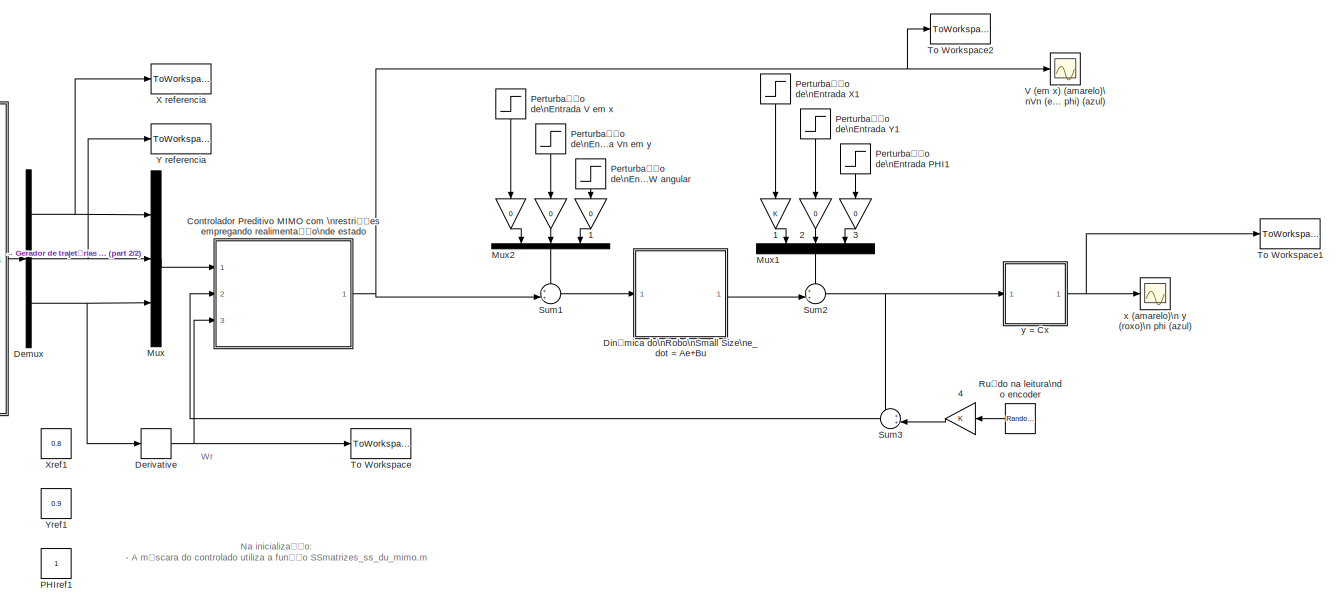
[diagram: root canvas - part 1/2, most of the canvas]
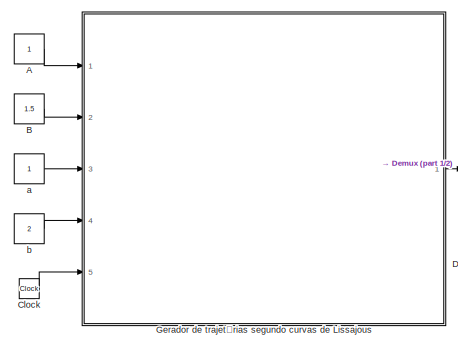
[diagram: root canvas - part 2/2, middle left region]
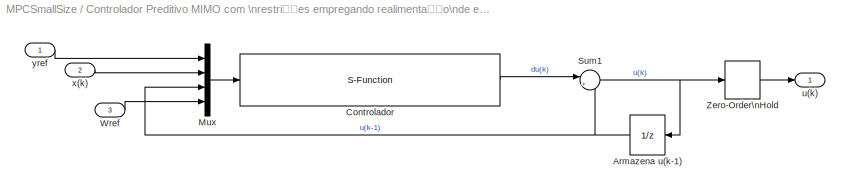
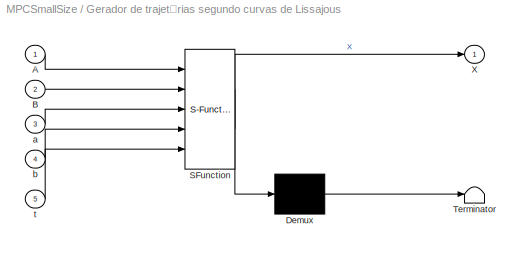
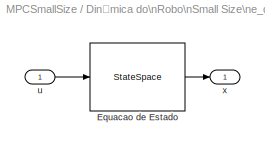
MODEL MPCSmallSize
KIND model
CONFIG InitFcn = parametrosSmallSize
CONFIG StopFcn = robotTrajectoryAnimation(xref,yref,X(:,1),X(:,2),X(:,3))
BLOCK [Gain]  
  Gain = 0
  OutDataTypeStr = Inherit: Inherit via internal rule
  ParamDataTypeStr = Inherit: Inherit via internal rule
  SID = 50
  SaturateOnIntegerOverflow = off
BLOCK [Gain]   
  Gain = 0
  OutDataTypeStr = Inherit: Inherit via internal rule
  ParamDataTypeStr = Inherit: Inherit via internal rule
  SID = 51
  SaturateOnIntegerOverflow = off
BLOCK [Gain]   1
  OutDataTypeStr = Inherit: Inherit via internal rule
  ParamDataTypeStr = Inherit: Inherit via internal rule
  SID = 88
  SaturateOnIntegerOverflow = off
BLOCK [Gain]  1
  Gain = 0
  OutDataTypeStr = Inherit: Inherit via internal rule
  ParamDataTypeStr = Inherit: Inherit via internal rule
  SID = 61
  SaturateOnIntegerOverflow = off
BLOCK [Gain]  2
  Gain = 0
  OutDataTypeStr = Inherit: Inherit via internal rule
  ParamDataTypeStr = Inherit: Inherit via internal rule
  SID = 87
  SaturateOnIntegerOverflow = off
BLOCK [Gain]  3
  Gain = 0
  OutDataTypeStr = Inherit: Inherit via internal rule
  ParamDataTypeStr = Inherit: Inherit via internal rule
  SID = 89
  SaturateOnIntegerOverflow = off
BLOCK [Gain]  4
  OutDataTypeStr = Inherit: Inherit via internal rule
  ParamDataTypeStr = Inherit: Inherit via internal rule
  SID = 97
  SaturateOnIntegerOverflow = off
BLOCK [Scope]  x (amarelo)\n y (roxo)\n phi (azul)
  NumInputPorts = 1
  Ports = [1]
  SID = 64
  ScopeSpecificationString = Simulink.scopes.TimeScopeBlockCfg('CurrentConfiguration', extmgr.ConfigurationSet(extmgr.Configuration('Core','General UI',true),extmgr.Configuration('Core','Source UI',true),extmgr.Configuration('Sources','WiredSimulink',true,'DataLoggingVariableName','ScopeData1','DataLoggingSaveFormat','Array','DataLoggingDecimation','1','DataLoggingDecimateData',true),extmgr.Configuration('Visuals','Time Domai...<+1827ch>
BLOCK [Constant] A
  SID = 105
BLOCK [Constant] B
  SID = 106
  Value = 1.5
BLOCK [Clock] Clock
  SID = 104
BLOCK [SubSystem] Controlador Preditivo MIMO com \nrestrições empregando realimentação\nde estado
  Ports = [3, 1]
  RequestExecContextInheritance = off
  SID = 1
  Variant = off
BLOCK [UnitDelay] Controlador Preditivo MIMO com \nrestrições empregando realimentação\nde estado/Armazena u(k-1)
  SID = 4
  SampleTime = T
BLOCK [S-Function] Controlador Preditivo MIMO com \nrestrições empregando realimentação\nde estado/Controlador
  EnableBusSupport = off
  FunctionName = SSmpc_ss_du_mimo
  Parameters = dumax,dumin,umax,umin,ymax,ymin,p,q,n,N,M,mu,rho,T
  Ports = [1, 1]
  SFcnIsStateOwnerBlock = off
  SFunctionDeploymentMode = off
  SID = 5
BLOCK [Mux] Controlador Preditivo MIMO com \nrestrições empregando realimentação\nde estado/Mux
  DisplayOption = bar
  Ports = [4, 1]
  SID = 6
BLOCK [Sum] Controlador Preditivo MIMO com \nrestrições empregando realimentação\nde estado/Sum1
  IconShape = round
  Inputs = |++
  Ports = [2, 1]
  SID = 7
BLOCK [Inport] Controlador Preditivo MIMO com \nrestrições empregando realimentação\nde estado/Wref
  IconDisplay = Port number
  Port = 3
  SID = 56
BLOCK [ZeroOrderHold] Controlador Preditivo MIMO com \nrestrições empregando realimentação\nde estado/Zero-Order\nHold
  SID = 8
  SampleTime = T
BLOCK [Outport] Controlador Preditivo MIMO com \nrestrições empregando realimentação\nde estado/u(k)
  IconDisplay = Port number
  SID = 9
BLOCK [Inport] Controlador Preditivo MIMO com \nrestrições empregando realimentação\nde estado/x(k)
  IconDisplay = Port number
  Port = 2
  SID = 3
BLOCK [Inport] Controlador Preditivo MIMO com \nrestrições empregando realimentação\nde estado/yref
  IconDisplay = Port number
  SID = 2
BLOCK [Demux] Demux
  DisplayOption = bar
  Outputs = 3
  Ports = [1, 3]
  SID = 103
BLOCK [Derivative] Derivative
  SID = 53
BLOCK [SubSystem] Dinâmica do\nRobo\nSmall Size\ne_dot = Ae+Bu
  Ports = [1, 1]
  RequestExecContextInheritance = off
  SID = 11
  Variant = off
BLOCK [StateSpace] Dinâmica do\nRobo\nSmall Size\ne_dot = Ae+Bu/Equacao de Estado
  A = Ac
  B = Bc
  C = eye(size(A,1),size(A,1))
  D = zeros(size(A,1),size(B,2))
  Ports = [1, 1]
  SID = 13
  X0 = zeros(size(A,1),1)
BLOCK [Inport] Dinâmica do\nRobo\nSmall Size\ne_dot = Ae+Bu/u
  IconDisplay = Port number
  SID = 12
BLOCK [Outport] Dinâmica do\nRobo\nSmall Size\ne_dot = Ae+Bu/x
  IconDisplay = Port number
  SID = 14
BLOCK [SubSystem] Gerador de trajetórias segundo curvas de Lissajous
  ErrorFcn = Stateflow.Translate.translate
  PermitHierarchicalResolution = ExplicitOnly
  Ports = [5, 1]
  RequestExecContextInheritance = off
  SFBlockType = MATLAB Function
  SID = 98
  TreatAsAtomicUnit = on
  Variant = off
BLOCK [Demux] Gerador de trajetórias segundo curvas de Lissajous/ Demux 
  Outputs = 1
  Ports = [1, 1]
  SID = 98::20
BLOCK [S-Function] Gerador de trajetórias segundo curvas de Lissajous/ SFunction 
  EnableBusSupport = on
  FunctionName = sf_sfun
  PortCounts = [5 2]
  Ports = [5, 2]
  SFcnIsStateOwnerBlock = off
  SFunctionDeploymentMode = off
  SID = 98::19
  Tag = Stateflow S-Function MPCSmallSize 2
BLOCK [Terminator] Gerador de trajetórias segundo curvas de Lissajous/ Terminator 
  SID = 98::21
BLOCK [Inport] Gerador de trajetórias segundo curvas de Lissajous/A
  IconDisplay = Port number
  SID = 98::1
BLOCK [Inport] Gerador de trajetórias segundo curvas de Lissajous/B
  IconDisplay = Port number
  Port = 2
  SID = 98::22
BLOCK [Outport] Gerador de trajetórias segundo curvas de Lissajous/X
  IconDisplay = Port number
  SID = 98::5
BLOCK [Inport] Gerador de trajetórias segundo curvas de Lissajous/a
  IconDisplay = Port number
  Port = 3
  SID = 98::23
BLOCK [Inport] Gerador de trajetórias segundo curvas de Lissajous/b
  IconDisplay = Port number
  Port = 4
  SID = 98::24
BLOCK [Inport] Gerador de trajetórias segundo curvas de Lissajous/t
  IconDisplay = Port number
  Port = 5
  SID = 98::25
BLOCK [Mux] Mux
  DisplayOption = bar
  Inputs = 3
  Ports = [3, 1]
  SID = 15
BLOCK [Mux] Mux1
  DisplayOption = bar
  Inputs = 3
  Ports = [3, 1]
  SID = 90
BLOCK [Mux] Mux2
  DisplayOption = bar
  Inputs = 3
  Ports = [3, 1]
  SID = 17
BLOCK [Constant] PHIref1
  Commented = on
  SID = 99
BLOCK [Step] Perturbação de\nEntrada PHI1
  After = 2
  SID = 91
  SampleTime = 0
  Time = 4
BLOCK [Step] Perturbação de\nEntrada V em x
  SID = 32
  SampleTime = 0
BLOCK [Step] Perturbação de\nEntrada Vn em y
  After = 2
  SID = 33
  SampleTime = 0
  Time = 4
BLOCK [Step] Perturbação de\nEntrada W angular
  After = 2
  SID = 62
  SampleTime = 0
  Time = 4
BLOCK [Step] Perturbação de\nEntrada X1
  SID = 92
  SampleTime = 0
  Time = 0.3
BLOCK [Step] Perturbação de\nEntrada Y1
  After = 1.5
  SID = 93
  SampleTime = 0
  Time = 0.6
BLOCK [RandomNumber] Ruído na leitura\ndo encoder
  SID = 95
  SampleTime = 0.1
  Variance = 0.001
BLOCK [Sum] Sum1
  IconShape = round
  InputSameDT = off
  Inputs = ++|
  OutDataTypeStr = Inherit: Inherit via internal rule
  Ports = [2, 1]
  SID = 38
BLOCK [Sum] Sum2
  IconShape = round
  InputSameDT = off
  Inputs = ++|
  OutDataTypeStr = Inherit: Inherit via internal rule
  Ports = [2, 1]
  SID = 94
BLOCK [Sum] Sum3
  IconShape = round
  InputSameDT = off
  Inputs = ++|
  OutDataTypeStr = Inherit: Inherit via internal rule
  Ports = [2, 1]
  SID = 96
BLOCK [ToWorkspace] To Workspace
  FixptAsFi = on
  MaxDataPoints = inf
  Ports = [1]
  SID = 59
  SampleTime = -1
  Save2DSignal = 3-D array (concatenate along third dimension)
  SaveFormat = Timeseries
  VariableName = wr
BLOCK [ToWorkspace] To Workspace1
  FixptAsFi = on
  MaxDataPoints = inf
  Ports = [1]
  SID = 65
  SampleTime = -1
  Save2DSignal = 2-D array (concatenate along first dimension)
  VariableName = X
BLOCK [ToWorkspace] To Workspace2
  FixptAsFi = on
  MaxDataPoints = inf
  Ports = [1]
  SID = 112
  SampleTime = -1
  Save2DSignal = 2-D array (concatenate along first dimension)
  SaveFormat = Structure With Time
  VariableName = u
BLOCK [Scope] V (em x) (amarelo)\nVn (em y) (roxo)\nW (em phi) (azul)
  NumInputPorts = 1
  Ports = [1]
  SID = 40
  ScopeSpecificationString = Simulink.scopes.TimeScopeBlockCfg('CurrentConfiguration', extmgr.ConfigurationSet(extmgr.Configuration('Core','General UI',true),extmgr.Configuration('Core','Source UI',true),extmgr.Configuration('Sources','WiredSimulink',true,'DataLoggingVariableName','y1','DataLoggingSaveFormat','Array','DataLoggingDecimation','1','DataLoggingDecimateData',true),extmgr.Configuration('Visuals','Time Domain',true,...<+2010ch>
BLOCK [ToWorkspace] X referencia
  FixptAsFi = on
  MaxDataPoints = inf
  Ports = [1]
  SID = 110
  SampleTime = -1
  Save2DSignal = 2-D array (concatenate along first dimension)
  VariableName = xref
BLOCK [Constant] Xref1
  Commented = on
  SID = 100
  Value = 0.8
BLOCK [ToWorkspace] Y referencia
  FixptAsFi = on
  MaxDataPoints = inf
  Ports = [1]
  SID = 109
  SampleTime = -1
  Save2DSignal = 2-D array (concatenate along first dimension)
  VariableName = yref
BLOCK [Constant] Yref1
  Commented = on
  SID = 101
  Value = 0.9
BLOCK [Constant] a
  SID = 107
BLOCK [Constant] b
  SID = 108
  Value = 2
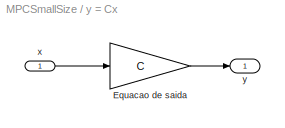
BLOCK [SubSystem] y = Cx
  Ports = [1, 1]
  RequestExecContextInheritance = off
  SID = 44
  Variant = off
BLOCK [Gain] y = Cx/Equacao de saida
  Gain = C
  Multiplication = Matrix(K*u)
  SID = 46
BLOCK [Inport] y = Cx/x
  IconDisplay = Port number
  SID = 45
BLOCK [Outport] y = Cx/y
  IconDisplay = Port number
  SID = 47
ANNOTATION (root): Wr
ANNOTATION (root): \nNa inicialização:\n- A máscara do controlado utiliza a função SSmatrizes_ss_du_mimo.m
LINE   1:1 -> Mux1:1
LINE   :1 -> Mux2:1
LINE  1:1 -> Mux2:3
LINE  2:1 -> Mux1:2
LINE  3:1 -> Mux1:3
LINE  4:1 -> Sum3:2
LINE  :1 -> Mux2:2
LINE A:1 -> Gerador de trajetórias segundo curvas de Lissajous:1
LINE B:1 -> Gerador de trajetórias segundo curvas de Lissajous:2
LINE Clock:1 -> Gerador de trajetórias segundo curvas de Lissajous:5
NET Controlador Preditivo MIMO com \nrestrições empregando realimentação\nde estado/Armazena u(k-1):1 -> Controlador Preditivo MIMO com \nrestrições empregando realimentação\nde estado/Mux:3, Controlador Preditivo MIMO com \nrestrições empregando realimentação\nde estado/Sum1:2
LINE Controlador Preditivo MIMO com \nrestrições empregando realimentação\nde estado/Controlador:1 -> Controlador Preditivo MIMO com \nrestrições empregando realimentação\nde estado/Sum1:1
LINE Controlador Preditivo MIMO com \nrestrições empregando realimentação\nde estado/Mux:1 -> Controlador Preditivo MIMO com \nrestrições empregando realimentação\nde estado/Controlador:1
NET Controlador Preditivo MIMO com \nrestrições empregando realimentação\nde estado/Sum1:1 -> Controlador Preditivo MIMO com \nrestrições empregando realimentação\nde estado/Armazena u(k-1):1, Controlador Preditivo MIMO com \nrestrições empregando realimentação\nde estado/Zero-Order\nHold:1
LINE Controlador Preditivo MIMO com \nrestrições empregando realimentação\nde estado/Wref:1 -> Controlador Preditivo MIMO com \nrestrições empregando realimentação\nde estado/Mux:4
LINE Controlador Preditivo MIMO com \nrestrições empregando realimentação\nde estado/Zero-Order\nHold:1 -> Controlador Preditivo MIMO com \nrestrições empregando realimentação\nde estado/u(k):1
LINE Controlador Preditivo MIMO com \nrestrições empregando realimentação\nde estado/x(k):1 -> Controlador Preditivo MIMO com \nrestrições empregando realimentação\nde estado/Mux:2
LINE Controlador Preditivo MIMO com \nrestrições empregando realimentação\nde estado/yref:1 -> Controlador Preditivo MIMO com \nrestrições empregando realimentação\nde estado/Mux:1
NET Controlador Preditivo MIMO com \nrestrições empregando realimentação\nde estado:1 -> Sum1:2, To Workspace2:1, V (em x) (amarelo)\nVn (em y) (roxo)\nW (em phi) (azul):1
NET Demux:1 -> Mux:1, X referencia:1
NET Demux:2 -> Mux:2, Y referencia:1
NET Demux:3 -> Derivative:1, Mux:3
NET Derivative:1 -> Controlador Preditivo MIMO com \nrestrições empregando realimentação\nde estado:3, To Workspace:1
LINE Dinâmica do\nRobo\nSmall Size\ne_dot = Ae+Bu/Equacao de Estado:1 -> Dinâmica do\nRobo\nSmall Size\ne_dot = Ae+Bu/x:1
LINE Dinâmica do\nRobo\nSmall Size\ne_dot = Ae+Bu/u:1 -> Dinâmica do\nRobo\nSmall Size\ne_dot = Ae+Bu/Equacao de Estado:1
LINE Dinâmica do\nRobo\nSmall Size\ne_dot = Ae+Bu:1 -> Sum2:2
LINE Gerador de trajetórias segundo curvas de Lissajous/ Demux :1 -> Gerador de trajetórias segundo curvas de Lissajous/ Terminator :1
LINE Gerador de trajetórias segundo curvas de Lissajous/ SFunction :1 -> Gerador de trajetórias segundo curvas de Lissajous/ Demux :1
LINE Gerador de trajetórias segundo curvas de Lissajous/ SFunction :2 -> Gerador de trajetórias segundo curvas de Lissajous/X:1
LINE Gerador de trajetórias segundo curvas de Lissajous/A:1 -> Gerador de trajetórias segundo curvas de Lissajous/ SFunction :1
LINE Gerador de trajetórias segundo curvas de Lissajous/B:1 -> Gerador de trajetórias segundo curvas de Lissajous/ SFunction :2
LINE Gerador de trajetórias segundo curvas de Lissajous/a:1 -> Gerador de trajetórias segundo curvas de Lissajous/ SFunction :3
LINE Gerador de trajetórias segundo curvas de Lissajous/b:1 -> Gerador de trajetórias segundo curvas de Lissajous/ SFunction :4
LINE Gerador de trajetórias segundo curvas de Lissajous/t:1 -> Gerador de trajetórias segundo curvas de Lissajous/ SFunction :5
LINE Gerador de trajetórias segundo curvas de Lissajous:1 -> Demux:1
LINE Mux1:1 -> Sum2:1
LINE Mux2:1 -> Sum1:1
LINE Mux:1 -> Controlador Preditivo MIMO com \nrestrições empregando realimentação\nde estado:1
LINE Perturbação de\nEntrada PHI1:1 ->  3:1
LINE Perturbação de\nEntrada V em x:1 ->   :1
LINE Perturbação de\nEntrada Vn em y:1 ->  :1
LINE Perturbação de\nEntrada W angular:1 ->  1:1
LINE Perturbação de\nEntrada X1:1 ->   1:1
LINE Perturbação de\nEntrada Y1:1 ->  2:1
LINE Ruído na leitura\ndo encoder:1 ->  4:1
LINE Sum1:1 -> Dinâmica do\nRobo\nSmall Size\ne_dot = Ae+Bu:1
NET Sum2:1 -> Sum3:1, y = Cx:1
LINE Sum3:1 -> Controlador Preditivo MIMO com \nrestrições empregando realimentação\nde estado:2
LINE a:1 -> Gerador de trajetórias segundo curvas de Lissajous:3
LINE b:1 -> Gerador de trajetórias segundo curvas de Lissajous:4
LINE y = Cx/Equacao de saida:1 -> y = Cx/y:1
LINE y = Cx/x:1 -> y = Cx/Equacao de saida:1
NET y = Cx:1 ->  x (amarelo)\n y (roxo)\n phi (azul):1, To Workspace1:1
note: NET lines group one-source signal fan-out (src -> all destinations, sorted); 1:1 wires keep LINE
CHART Gerador de trajetórias segundo curvas de Lissajous states=1 transitions=1
  STATE_LABEL 'eML_blk_kernel()'
